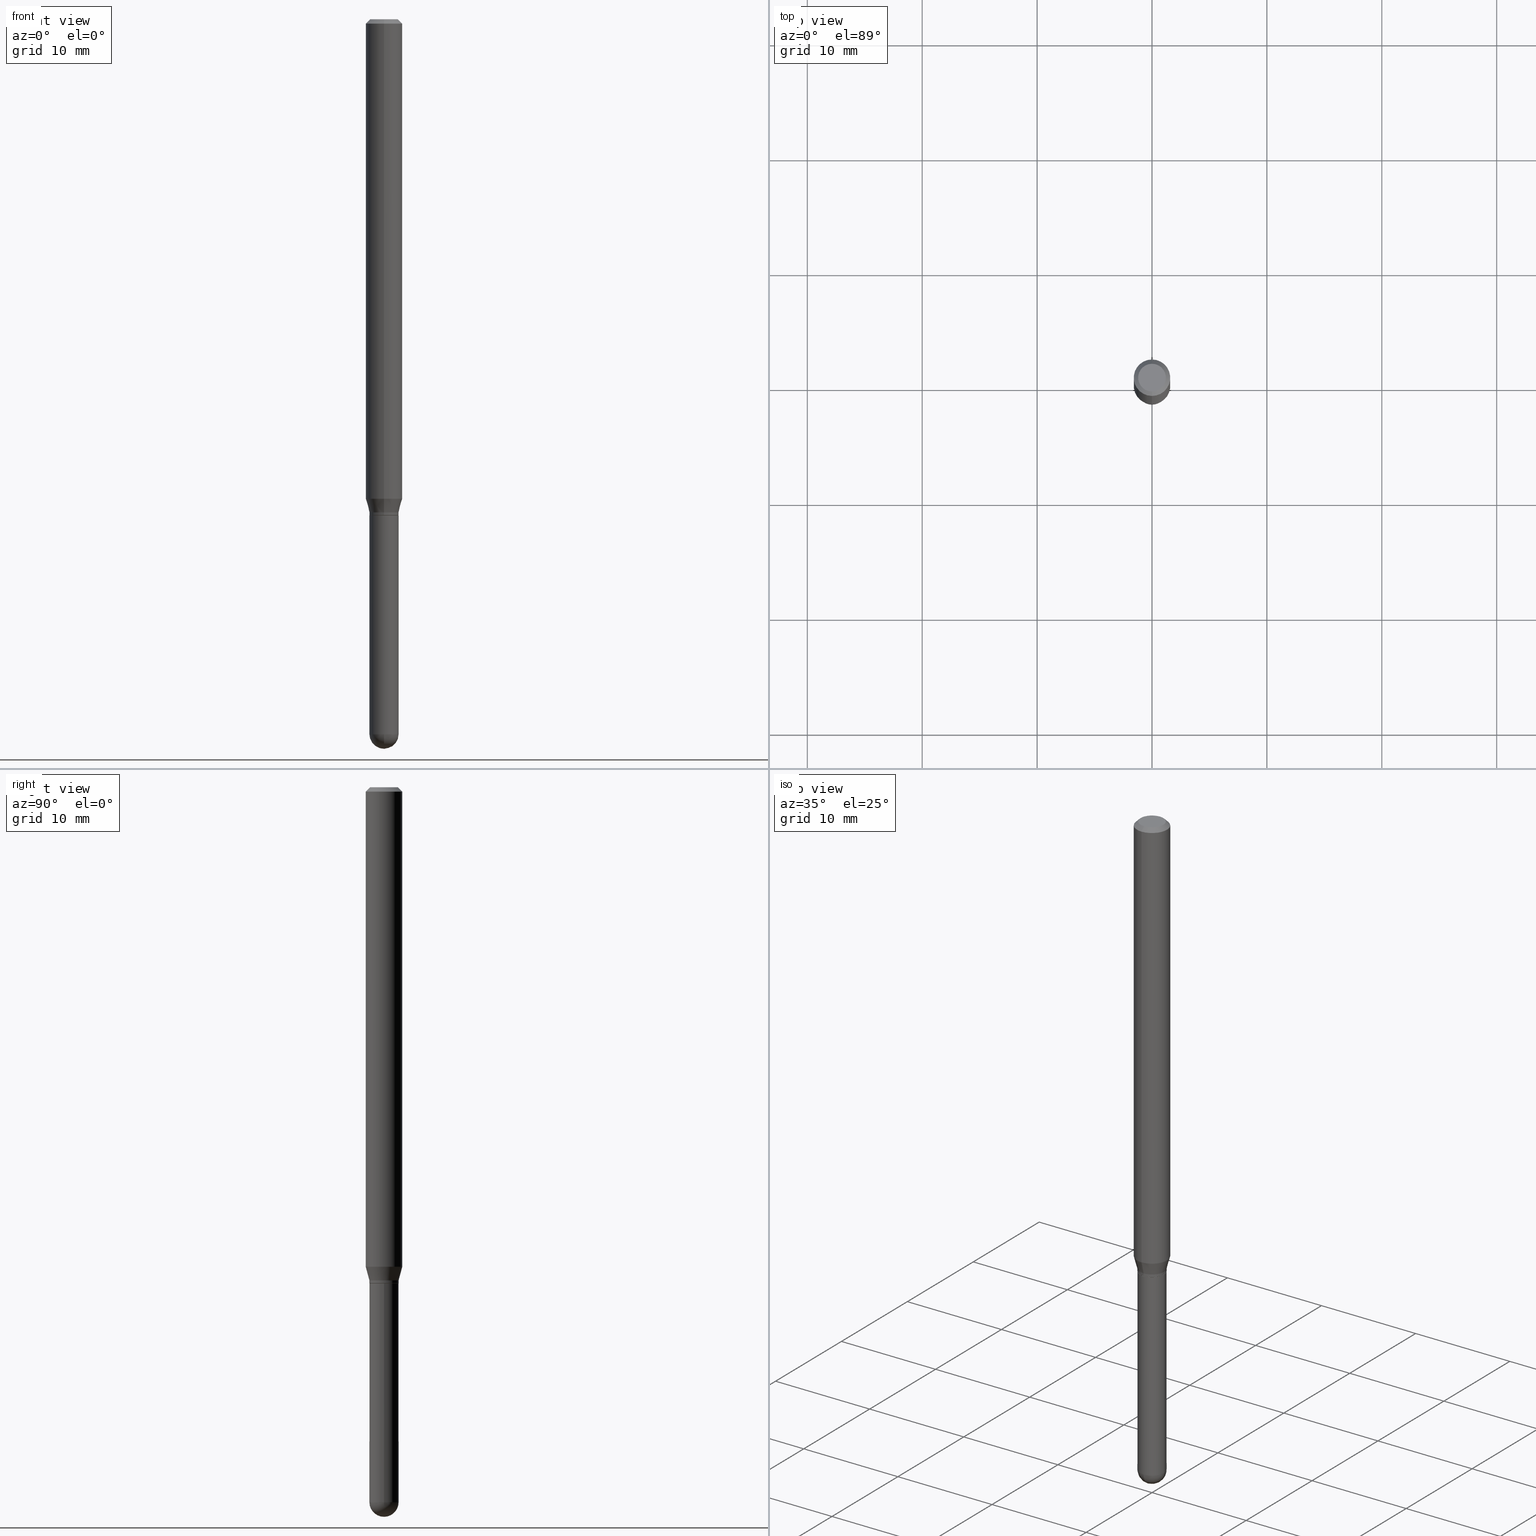
[diagram: canonical four-view strip — front | top / right | iso, engineering-drawing reading convention]
A machine part, canonical four-view strip (front | top / right | iso — engineering-drawing reading convention). The complete STEP part file that produces these views, byte-faithful:
ISO-10303-21;
HEADER;
FILE_DESCRIPTION (( 'STEP AP203' ),
    '1' );
FILE_NAME ('02770.STEP',
    '2024-03-07T21:22:55',
    ( '' ),
    ( '' ),
    'SwSTEP 2.0',
    'SolidWorks 2023',
    '' );
FILE_SCHEMA (( 'CONFIG_CONTROL_DESIGN' ));
ENDSEC;

DATA;
#1 = CARTESIAN_POINT ( 'NONE',  ( 8.025071370711656730E-45, -1.145702957227667163E-30, -3.281516264448300764E-16 ) ) ;
#2 = VERTEX_POINT ( 'NONE', #54 ) ;
#3 = VECTOR ( 'NONE', #172, 39.37007874015748143 ) ;
#4 = VECTOR ( 'NONE', #196, 39.37007874015748143 ) ;
#5 = PRODUCT_DEFINITION ( 'UNKNOWN', '', #163, #113 ) ;
#6 = UNCERTAINTY_MEASURE_WITH_UNIT (LENGTH_MEASURE( 1.000000000000000082E-05 ), #199, 'distance_accuracy_value', 'NONE');
#7 = CARTESIAN_POINT ( 'NONE',  ( 4.440892098501028481E-16, 0.06249999999999429623, -1.643349364905388077 ) ) ;
#8 = VERTEX_POINT ( 'NONE', #206 ) ;
#9 = FACE_OUTER_BOUND ( 'NONE', #446, .T. ) ;
#10 = ORIENTED_EDGE ( 'NONE', *, *, #401, .F. ) ;
#11 = CARTESIAN_POINT ( 'NONE',  ( 3.668306382169205051E-31, -5.237074258812084429E-17, -0.01500000000000032904 ) ) ;
#12 = ORIENTED_EDGE ( 'NONE', *, *, #323, .T. ) ;
#13 = EDGE_CURVE ( 'NONE', #2, #310, #242, .T. ) ;
#14 = AXIS2_PLACEMENT_3D ( 'NONE', #367, #292, #404 ) ;
#15 = CARTESIAN_POINT ( 'NONE',  ( 4.157413899791674126E-29, -5.935350826653564818E-15, -1.699999999999999956 ) ) ;
#16 = CARTESIAN_POINT ( 'NONE',  ( -4.364351673553512403E-16, -0.06250000000000570377, -1.643349364905387633 ) ) ;
#17 = VERTEX_POINT ( 'NONE', #415 ) ;
#18 = DIRECTION ( 'NONE',  ( -2.445537588112749651E-29, 3.491382839207979536E-15, 1.000000000000000000 ) ) ;
#19 = DIRECTION ( 'NONE',  ( 2.445537588112749371E-29, -3.491382839207979536E-15, -1.000000000000000000 ) ) ;
#20 = AXIS2_PLACEMENT_3D ( 'NONE', #215, #32, #142 ) ;
#21 = CARTESIAN_POINT ( 'NONE',  ( 0.000000000000000000, 0.000000000000000000, 0.000000000000000000 ) ) ;
#22 = CIRCLE ( 'NONE', #509, 0.04999999999999999584 ) ;
#23 = VERTEX_POINT ( 'NONE', #326 ) ;
#24 = DIRECTION ( 'NONE',  ( -6.982962677686265133E-15, -1.000000000000000000, 5.463695987328564302E-15 ) ) ;
#25 = ORIENTED_EDGE ( 'NONE', *, *, #375, .T. ) ;
#26 = CARTESIAN_POINT ( 'NONE',  ( 4.157296970514732439E-29, -5.935518276033348003E-15, -1.700000000000000178 ) ) ;
#27 = CC_DESIGN_DATE_AND_TIME_ASSIGNMENT ( #421, #342, ( #5 ) ) ;
#28 = DIRECTION ( 'NONE',  ( -2.445537588112749371E-29, 3.491382839207979536E-15, 1.000000000000000000 ) ) ;
#29 = AXIS2_PLACEMENT_3D ( 'NONE', #11, #111, #278 ) ;
#30 = CALENDAR_DATE ( 2024, 7, 3 ) ;
#31 = CARTESIAN_POINT ( 'NONE',  ( -4.364351673553916201E-16, -0.06250000000000000000, 2.182114274504987210E-16 ) ) ;
#32 = DIRECTION ( 'NONE',  ( 2.438088387897960049E-29, -3.491481338843145188E-15, -1.000000000000000000 ) ) ;
#33 = CARTESIAN_POINT ( 'NONE',  ( 0.000000000000000000, 0.000000000000000000, 0.000000000000000000 ) ) ;
#34 = SECURITY_CLASSIFICATION ( '', '', #68 ) ;
#35 = LINE ( 'NONE', #268, #4 ) ;
#36 = ORIENTED_EDGE ( 'NONE', *, *, #200, .F. ) ;
#37 = DIRECTION ( 'NONE',  ( -2.445468806185136597E-29, 3.491481338843145583E-15, 1.000000000000000000 ) ) ;
#38 = EDGE_LOOP ( 'NONE', ( #287, #83 ) ) ;
#39 = DIRECTION ( 'NONE',  ( 2.445537588112749651E-29, -3.491382839207979536E-15, -1.000000000000000000 ) ) ;
#40 = ORIENTED_EDGE ( 'NONE', *, *, #67, .T. ) ;
#41 = AXIS2_PLACEMENT_3D ( 'NONE', #271, #473, #358 ) ;
#42 = CARTESIAN_POINT ( 'NONE',  ( 4.440892098500625669E-16, 0.06250000000000000000, -2.182114274504987210E-16 ) ) ;
#43 = VERTEX_POINT ( 'NONE', #409 ) ;
#44 = CARTESIAN_POINT ( 'NONE',  ( 3.491481338843722536E-16, 0.04999999999999130834, -2.450000000000000178 ) ) ;
#45 = EDGE_CURVE ( 'NONE', #435, #277, #346, .T. ) ;
#46 = ORIENTED_EDGE ( 'NONE', *, *, #499, .F. ) ;
#47 =( LENGTH_UNIT ( ) NAMED_UNIT ( * ) SI_UNIT ( $, .METRE. ) );
#48 = CARTESIAN_POINT ( 'NONE',  ( 3.552713678800889641E-16, 0.04999999999999376471, -1.690000000000000169 ) ) ;
#49 = VECTOR ( 'NONE', #341, 39.37007874015748143 ) ;
#50 = LOCAL_TIME ( 16, 22, 55.00000000000000000, #377 ) ;
#51 = DIRECTION ( 'NONE',  ( -2.445468806185136597E-29, 3.491481338843145583E-15, 1.000000000000000000 ) ) ;
#52 = DIRECTION ( 'NONE',  ( 1.000000000000000000, -6.982962677686274599E-15, 0.000000000000000000 ) ) ;
#53 = EDGE_CURVE ( 'NONE', #435, #458, #368, .T. ) ;
#54 = CARTESIAN_POINT ( 'NONE',  ( 3.996802888650959061E-16, 0.04999999999999376471, -1.690000000000000169 ) ) ;
#55 = EDGE_CURVE ( 'NONE', #132, #23, #414, .T. ) ;
#56 = ORIENTED_EDGE ( 'NONE', *, *, #95, .T. ) ;
#57 = FACE_OUTER_BOUND ( 'NONE', #120, .T. ) ;
#58 = AXIS2_PLACEMENT_3D ( 'NONE', #478, #229, #227 ) ;
#59 = DIRECTION ( 'NONE',  ( -2.445537588112749651E-29, 3.491382839207979536E-15, 1.000000000000000000 ) ) ;
#60 = ADVANCED_FACE ( 'NONE', ( #363 ), #164, .F. ) ;
#61 = DIRECTION ( 'NONE',  ( -2.445537588112749651E-29, 3.491382839207979536E-15, 1.000000000000000000 ) ) ;
#62 = PERSON_AND_ORGANIZATION ( #480, #347 ) ;
#63 = CYLINDRICAL_SURFACE ( 'NONE', #41, 0.06250000000000000000 ) ;
#64 = CARTESIAN_POINT ( 'NONE',  ( 0.04999999999999999584, -3.491481338843132862E-16, 2.438088387897967896E-30 ) ) ;
#65 = CIRCLE ( 'NONE', #118, 0.04999999999999966277 ) ;
#66 = ADVANCED_FACE ( 'NONE', ( #123 ), #284, .T. ) ;
#67 = EDGE_CURVE ( 'NONE', #43, #8, #260, .T. ) ;
#68 = SECURITY_CLASSIFICATION_LEVEL ( 'unclassified' ) ;
#69 = DIRECTION ( 'NONE',  ( -6.982962677686265922E-15, -1.000000000000000000, 4.370956789862821150E-15 ) ) ;
#70 = CARTESIAN_POINT ( 'NONE',  ( 0.000000000000000000, 0.000000000000000000, 0.000000000000000000 ) ) ;
#71 = CYLINDRICAL_SURFACE ( 'NONE', #355, 0.04999999999999965583 ) ;
#72 = DIRECTION ( 'NONE',  ( -2.445537588112749651E-29, 3.491382839207979536E-15, 1.000000000000000000 ) ) ;
#73 = VECTOR ( 'NONE', #419, 39.37007874015748143 ) ;
#74 = DIRECTION ( 'NONE',  ( -6.982962677686266711E-15, -1.000000000000000000, 5.518884835685379092E-15 ) ) ;
#75 = ORIENTED_EDGE ( 'NONE', *, *, #420, .F. ) ;
#76 = CARTESIAN_POINT ( 'NONE',  ( 4.018872642277341407E-29, -5.737561771454002160E-15, -1.643349364905387855 ) ) ;
#77 = ORIENTED_EDGE ( 'NONE', *, *, #281, .F. ) ;
#78 = DIRECTION ( 'NONE',  ( -6.982962677686266711E-15, -1.000000000000000000, 3.491382839207979931E-15 ) ) ;
#79 = ORIENTED_EDGE ( 'NONE', *, *, #484, .T. ) ;
#80 = CIRCLE ( 'NONE', #398, 0.06250000000000000000 ) ;
#81 = EDGE_CURVE ( 'NONE', #307, #197, #450, .T. ) ;
#82 = DIRECTION ( 'NONE',  ( -6.982962677686265133E-15, -1.000000000000000000, 5.463695987328564302E-15 ) ) ;
#83 = ORIENTED_EDGE ( 'NONE', *, *, #45, .F. ) ;
#84 = DIRECTION ( 'NONE',  ( -1.000000000000000000, 6.982962677686265922E-15, -4.883557194083112340E-29 ) ) ;
#85 = ORIENTED_EDGE ( 'NONE', *, *, #200, .T. ) ;
#86 = EDGE_LOOP ( 'NONE', ( #46, #170, #512, #452 ) ) ;
#87 = VECTOR ( 'NONE', #250, 39.37007874015748854 ) ;
#88 = AXIS2_PLACEMENT_3D ( 'NONE', #244, #407, #241 ) ;
#89 = FACE_OUTER_BOUND ( 'NONE', #412, .T. ) ;
#90 = CARTESIAN_POINT ( 'NONE',  ( 4.157296970514732439E-29, -5.935518276033348003E-15, -1.700000000000000178 ) ) ;
#91 =( NAMED_UNIT ( * ) PLANE_ANGLE_UNIT ( ) SI_UNIT ( $, .RADIAN. ) );
#92 = ORIENTED_EDGE ( 'NONE', *, *, #55, .T. ) ;
#93 = DIRECTION ( 'NONE',  ( -6.982962677686265922E-15, -1.000000000000000000, 3.491382839207979536E-15 ) ) ;
#94 = ORIENTED_EDGE ( 'NONE', *, *, #444, .F. ) ;
#95 = EDGE_CURVE ( 'NONE', #498, #43, #500, .T. ) ;
#96 = CARTESIAN_POINT ( 'NONE',  ( 4.157413899791674126E-29, -5.935350826653564818E-15, -1.699999999999999956 ) ) ;
#97 = DIRECTION ( 'NONE',  ( -6.982962677686265922E-15, -1.000000000000000000, 3.491382839207979536E-15 ) ) ;
#98 = DATE_AND_TIME ( #141, #272 ) ;
#99 = DIRECTION ( 'NONE',  ( -2.445537588112749651E-29, 3.491382839207979536E-15, 1.000000000000000000 ) ) ;
#100 = PERSON_AND_ORGANIZATION_ROLE ( 'creator' ) ;
#101 = CIRCLE ( 'NONE', #297, 0.04999999999999973910 ) ;
#102 = CARTESIAN_POINT ( 'NONE',  ( 3.840629472727447874E-16, 0.04749999999999999362, -4.939923113072091241E-16 ) ) ;
#103 = EDGE_CURVE ( 'NONE', #372, #109, #422, .T. ) ;
#104 = PRODUCT ( '02770', '02770', '', ( #258 ) ) ;
#105 = APPROVAL_ROLE ( '' ) ;
#106 = DIRECTION ( 'NONE',  ( 4.937700262164548042E-15, 0.7071067811865451302, -0.7071067811865499042 ) ) ;
#107 = CARTESIAN_POINT ( 'NONE',  ( -3.491481338842686663E-16, -0.05000000000000548450, -1.699500000000000011 ) ) ;
#108 = DIRECTION ( 'NONE',  ( -1.000000000000000000, 6.982962677686265922E-15, -4.883557194083112340E-29 ) ) ;
#109 = VERTEX_POINT ( 'NONE', #218 ) ;
#110 = CC_DESIGN_APPROVAL ( #276, ( #34 ) ) ;
#111 = DIRECTION ( 'NONE',  ( 2.445537588112749651E-29, -3.491382839207979536E-15, -1.000000000000000000 ) ) ;
#112 = ORIENTED_EDGE ( 'NONE', *, *, #364, .T. ) ;
#113 = DESIGN_CONTEXT ( 'detailed design', #128, 'design' ) ;
#114 = CARTESIAN_POINT ( 'NONE',  ( 4.156191130997619020E-29, -5.933605135233962617E-15, -1.699500000000000233 ) ) ;
#115 = ORIENTED_EDGE ( 'NONE', *, *, #185, .F. ) ;
#116 = LINE ( 'NONE', #42, #416 ) ;
#117 = ORIENTED_EDGE ( 'NONE', *, *, #405, .T. ) ;
#118 = AXIS2_PLACEMENT_3D ( 'NONE', #485, #482, #370 ) ;
#119 = DIRECTION ( 'NONE',  ( -1.000000000000000000, 7.105427357601001070E-15, -4.926315508542082329E-29 ) ) ;
#120 = EDGE_LOOP ( 'NONE', ( #322, #451, #10, #153 ) ) ;
#121 = ADVANCED_FACE ( 'NONE', ( #148 ), #505, .F. ) ;
#122 =( NAMED_UNIT ( * ) SI_UNIT ( $, .STERADIAN. ) SOLID_ANGLE_UNIT ( ) );
#123 = FACE_OUTER_BOUND ( 'NONE', #86, .T. ) ;
#124 = CC_DESIGN_PERSON_AND_ORGANIZATION_ASSIGNMENT ( #504, #216, ( #104 ) ) ;
#125 = DIRECTION ( 'NONE',  ( -2.445468806185136597E-29, 3.491481338843145583E-15, 1.000000000000000000 ) ) ;
#126 = ORIENTED_EDGE ( 'NONE', *, *, #305, .T. ) ;
#127 = CONICAL_SURFACE ( 'NONE', #29, 0.06250000000000000000, 0.7853981633974483900 ) ;
#128 = APPLICATION_CONTEXT ( 'configuration controlled 3d designs of mechanical parts and assemblies' ) ;
#129 = DIRECTION ( 'NONE',  ( -7.105427357601001070E-15, -1.000000000000000000, 0.000000000000000000 ) ) ;
#130 = ORIENTED_EDGE ( 'NONE', *, *, #13, .T. ) ;
#131 = DIRECTION ( 'NONE',  ( -2.445537588112749651E-29, 3.491382839207979536E-15, 1.000000000000000000 ) ) ;
#132 = VERTEX_POINT ( 'NONE', #463 ) ;
#133 = APPLICATION_PROTOCOL_DEFINITION ( 'international standard', 'config_control_design', 1994, #128 ) ;
#134 = ORIENTED_EDGE ( 'NONE', *, *, #195, .T. ) ;
#135 = PERSON_AND_ORGANIZATION_ROLE ( 'creator' ) ;
#136 = CONICAL_SURFACE ( 'NONE', #471, 0.06250000000000000000, 0.7853981633974483900 ) ;
#137 = CC_DESIGN_APPROVAL ( #343, ( #163 ) ) ;
#138 = DIRECTION ( 'NONE',  ( -6.982962677686266711E-15, -1.000000000000000000, 3.491382839207979931E-15 ) ) ;
#139 = PERSON_AND_ORGANIZATION ( #480, #347 ) ;
#140 = LINE ( 'NONE', #417, #384 ) ;
#141 = CALENDAR_DATE ( 2024, 7, 3 ) ;
#142 = DIRECTION ( 'NONE',  ( -1.000000000000000000, 6.982962677686265922E-15, -4.876176775795935793E-29 ) ) ;
#143 = PERSON_AND_ORGANIZATION ( #480, #347 ) ;
#144 = AXIS2_PLACEMENT_3D ( 'NONE', #26, #298, #173 ) ;
#145 = AXIS2_PLACEMENT_3D ( 'NONE', #402, #189, #352 ) ;
#146 = DIRECTION ( 'NONE',  ( 1.000000000000000000, -6.982962677686255667E-15, 0.000000000000000000 ) ) ;
#147 = APPROVAL_PERSON_ORGANIZATION ( #428, #276, #222 ) ;
#148 = FACE_OUTER_BOUND ( 'NONE', #156, .T. ) ;
#149 = DIRECTION ( 'NONE',  ( -2.445537588112749651E-29, 3.491382839207979536E-15, 1.000000000000000000 ) ) ;
#150 = ORIENTED_EDGE ( 'NONE', *, *, #53, .F. ) ;
#151 = FACE_OUTER_BOUND ( 'NONE', #350, .T. ) ;
#152 = AXIS2_PLACEMENT_3D ( 'NONE', #300, #223, #69 ) ;
#153 = ORIENTED_EDGE ( 'NONE', *, *, #81, .F. ) ;
#154 = AXIS2_PLACEMENT_3D ( 'NONE', #157, #356, #475 ) ;
#155 = DIRECTION ( 'NONE',  ( 1.000000000000000000, -6.982962677686265922E-15, 4.876176775795936353E-29 ) ) ;
#156 = EDGE_LOOP ( 'NONE', ( #92, #167 ) ) ;
#157 = CARTESIAN_POINT ( 'NONE',  ( 3.668306382169205051E-31, -5.237074258812084429E-17, -0.01500000000000032904 ) ) ;
#158 = MANIFOLD_SOLID_BREP ( 'Body-Move/Copy2[1]', #489 ) ;
#159 = ORIENTED_EDGE ( 'NONE', *, *, #246, .F. ) ;
#160 = DIRECTION ( 'NONE',  ( 6.982962677686265922E-15, 1.000000000000000000, -5.463695987328554836E-15 ) ) ;
#161 = VERTEX_POINT ( 'NONE', #102 ) ;
#162 = AXIS2_PLACEMENT_3D ( 'NONE', #445, #84, #239 ) ;
#163 = PRODUCT_DEFINITION_FORMATION_WITH_SPECIFIED_SOURCE ( 'ANY', '', #104, .NOT_KNOWN. ) ;
#164 = PLANE ( 'NONE',  #225 ) ;
#165 = SPHERICAL_SURFACE ( 'NONE', #162, 0.04999999999999973910 ) ;
#166 = DIRECTION ( 'NONE',  ( -6.982962677686266711E-15, -1.000000000000000000, 5.518884835685379092E-15 ) ) ;
#167 = ORIENTED_EDGE ( 'NONE', *, *, #221, .T. ) ;
#168 = AXIS2_PLACEMENT_3D ( 'NONE', #391, #467, #146 ) ;
#169 = CARTESIAN_POINT ( 'NONE',  ( 5.987122743707687383E-29, -8.560252514161443770E-15, -2.450000000000000178 ) ) ;
#170 = ORIENTED_EDGE ( 'NONE', *, *, #420, .T. ) ;
#171 = DATE_AND_TIME ( #390, #228 ) ;
#172 = DIRECTION ( 'NONE',  ( 5.024295867788147587E-15, 0.7071067811865620056, 0.7071067811865330288 ) ) ;
#173 = DIRECTION ( 'NONE',  ( 1.000000000000000000, -6.982962677686274599E-15, 0.000000000000000000 ) ) ;
#174 = PERSON_AND_ORGANIZATION ( #480, #347 ) ;
#175 = CIRCLE ( 'NONE', #335, 0.04999999999999999584 ) ;
#176 = APPROVAL_PERSON_ORGANIZATION ( #174, #267, #105 ) ;
#177 = FACE_OUTER_BOUND ( 'NONE', #207, .T. ) ;
#178 = DATE_AND_TIME ( #385, #481 ) ;
#179 = LINE ( 'NONE', #380, #182 ) ;
#180 = CC_DESIGN_PERSON_AND_ORGANIZATION_ASSIGNMENT ( #139, #219, ( #34 ) ) ;
#181 = DIRECTION ( 'NONE',  ( -2.445468806185136877E-29, 3.491481338843145188E-15, 1.000000000000000000 ) ) ;
#182 = VECTOR ( 'NONE', #106, 39.37007874015748143 ) ;
#183 = CIRCLE ( 'NONE', #362, 0.04999999999999966277 ) ;
#184 = CARTESIAN_POINT ( 'NONE',  ( 4.157413899791674126E-29, -5.935350826653564818E-15, -1.699999999999999956 ) ) ;
#185 = EDGE_CURVE ( 'NONE', #161, #8, #179, .T. ) ;
#186 = ADVANCED_FACE ( 'NONE', ( #263 ), #304, .F. ) ;
#187 = CARTESIAN_POINT ( 'NONE',  ( 4.132958523910547331E-29, -5.900436998261486087E-15, -1.689999999999999947 ) ) ;
#188 = EDGE_LOOP ( 'NONE', ( #134, #25, #317, #433 ) ) ;
#189 = DIRECTION ( 'NONE',  ( -2.445537588112749651E-29, 3.491382839207979536E-15, 1.000000000000000000 ) ) ;
#190 = ORIENTED_EDGE ( 'NONE', *, *, #55, .F. ) ;
#191 = DIRECTION ( 'NONE',  ( -6.982962677686265133E-15, -1.000000000000000000, 5.463695987328563513E-15 ) ) ;
#192 = ORIENTED_EDGE ( 'NONE', *, *, #221, .F. ) ;
#193 = AXIS2_PLACEMENT_3D ( 'NONE', #442, #392, #74 ) ;
#194 =( GEOMETRIC_REPRESENTATION_CONTEXT ( 3 ) GLOBAL_UNCERTAINTY_ASSIGNED_CONTEXT ( ( #6 ) ) GLOBAL_UNIT_ASSIGNED_CONTEXT ( ( #199, #91, #122 ) ) REPRESENTATION_CONTEXT ( 'NONE', 'WORKASPACE' ) );
#195 = EDGE_CURVE ( 'NONE', #498, #310, #382, .T. ) ;
#196 = DIRECTION ( 'NONE',  ( -1.807323732225327773E-15, -0.2588190451025178529, 0.9659258262890690894 ) ) ;
#197 = VERTEX_POINT ( 'NONE', #220 ) ;
#198 = CARTESIAN_POINT ( 'NONE',  ( -3.456566525454287160E-16, -0.04950000000000594202, -1.699999999999999734 ) ) ;
#199 =( CONVERSION_BASED_UNIT ( 'INCH', #324 ) LENGTH_UNIT ( ) NAMED_UNIT ( #345 ) );
#200 = EDGE_CURVE ( 'NONE', #197, #132, #344, .T. ) ;
#201 = DIRECTION ( 'NONE',  ( -2.445468806185136597E-29, 3.491481338843145583E-15, 1.000000000000000000 ) ) ;
#202 = CIRCLE ( 'NONE', #154, 0.06250000000000000000 ) ;
#203 = CC_DESIGN_SECURITY_CLASSIFICATION ( #34, ( #163 ) ) ;
#204 = CARTESIAN_POINT ( 'NONE',  ( 5.991398575153583765E-29, -8.554129280165706697E-15, -2.449999999999999734 ) ) ;
#205 = ORIENTED_EDGE ( 'NONE', *, *, #405, .F. ) ;
#206 = CARTESIAN_POINT ( 'NONE',  ( 4.440892098501030453E-16, 0.06249999999999995143, -0.01500000000000054588 ) ) ;
#207 = EDGE_LOOP ( 'NONE', ( #477, #483, #443, #448 ) ) ;
#208 = AXIS2_PLACEMENT_3D ( 'NONE', #96, #503, #507 ) ;
#209 = CIRCLE ( 'NONE', #58, 0.04999999999999999584 ) ;
#210 = CYLINDRICAL_SURFACE ( 'NONE', #253, 0.04999999999999999584 ) ;
#211 = CARTESIAN_POINT ( 'NONE',  ( 3.517186542012911717E-16, 0.04949999999999407652, -1.700000000000000178 ) ) ;
#212 = DATE_TIME_ROLE ( 'classification_date' ) ;
#213 = DIRECTION ( 'NONE',  ( -6.982962677686265133E-15, -1.000000000000000000, 3.491382839207979536E-15 ) ) ;
#214 = COORDINATED_UNIVERSAL_TIME_OFFSET ( 5, 0, .BEHIND. ) ;
#215 = CARTESIAN_POINT ( 'NONE',  ( 3.491481338843548493E-16, 0.04999999999999407002, -1.700000000000000400 ) ) ;
#216 = PERSON_AND_ORGANIZATION_ROLE ( 'design_owner' ) ;
#217 = CONICAL_SURFACE ( 'NONE', #88, 0.04950000000000000927, 0.7853981633974653764 ) ;
#218 = CARTESIAN_POINT ( 'NONE',  ( -3.491481338842696524E-16, -0.05000000000000556083, -1.689999999999999725 ) ) ;
#219 = PERSON_AND_ORGANIZATION_ROLE ( 'classification_officer' ) ;
#220 = CARTESIAN_POINT ( 'NONE',  ( 0.04999999999999999584, -7.593971911983840291E-15, -2.449999999999999734 ) ) ;
#221 = EDGE_CURVE ( 'NONE', #23, #132, #371, .T. ) ;
#222 = APPROVAL_ROLE ( '' ) ;
#223 = DIRECTION ( 'NONE',  ( -2.445537588112749651E-29, 3.491382839207979536E-15, 1.000000000000000000 ) ) ;
#224 = EDGE_CURVE ( 'NONE', #277, #435, #439, .T. ) ;
#225 = AXIS2_PLACEMENT_3D ( 'NONE', #366, #19, #320 ) ;
#226 = AXIS2_PLACEMENT_3D ( 'NONE', #114, #232, #82 ) ;
#227 = DIRECTION ( 'NONE',  ( 1.000000000000000000, -6.982962677686255667E-15, 0.000000000000000000 ) ) ;
#228 = LOCAL_TIME ( 16, 22, 55.00000000000000000, #214 ) ;
#229 = DIRECTION ( 'NONE',  ( -2.445468806185136597E-29, 3.491481338843145583E-15, 1.000000000000000000 ) ) ;
#230 = ORIENTED_EDGE ( 'NONE', *, *, #13, .F. ) ;
#231 = EDGE_CURVE ( 'NONE', #161, #240, #296, .T. ) ;
#232 = DIRECTION ( 'NONE',  ( -2.445537588112749651E-29, 3.491382839207979536E-15, 1.000000000000000000 ) ) ;
#233 = ORIENTED_EDGE ( 'NONE', *, *, #381, .F. ) ;
#234 = DIRECTION ( 'NONE',  ( -4.937700262164631661E-15, -0.7071067811865571207, 0.7071067811865379138 ) ) ;
#235 = AXIS2_PLACEMENT_3D ( 'NONE', #490, #449, #24 ) ;
#236 = ORIENTED_EDGE ( 'NONE', *, *, #338, .F. ) ;
#237 = SPHERICAL_SURFACE ( 'NONE', #408, 0.04999999999999973910 ) ;
#238 = ORIENTED_EDGE ( 'NONE', *, *, #281, .T. ) ;
#239 = DIRECTION ( 'NONE',  ( 6.982962677686265922E-15, 1.000000000000000000, -5.463695987328554836E-15 ) ) ;
#240 = VERTEX_POINT ( 'NONE', #254 ) ;
#241 = DIRECTION ( 'NONE',  ( -6.982962677686266711E-15, -1.000000000000000000, 5.518884835685379092E-15 ) ) ;
#242 = LINE ( 'NONE', #48, #87 ) ;
#243 = CIRCLE ( 'NONE', #288, 0.04749999999999999362 ) ;
#244 = CARTESIAN_POINT ( 'NONE',  ( 4.157413899791674126E-29, -5.935350826653564818E-15, -1.699999999999999956 ) ) ;
#245 = ORIENTED_EDGE ( 'NONE', *, *, #305, .F. ) ;
#246 = EDGE_CURVE ( 'NONE', #353, #313, #101, .T. ) ;
#247 = EDGE_LOOP ( 'NONE', ( #150, #361, #456, #75 ) ) ;
#248 = CC_DESIGN_PERSON_AND_ORGANIZATION_ASSIGNMENT ( #62, #135, ( #163 ) ) ;
#249 = FACE_OUTER_BOUND ( 'NONE', #394, .T. ) ;
#250 = DIRECTION ( 'NONE',  ( 1.839019923739597554E-15, 0.2588190451025245697, 0.9659258262890670910 ) ) ;
#251 = AXIS2_PLACEMENT_3D ( 'NONE', #90, #201, #52 ) ;
#252 = PRODUCT_RELATED_PRODUCT_CATEGORY ( 'detail', '', ( #104 ) ) ;
#253 = AXIS2_PLACEMENT_3D ( 'NONE', #374, #125, #411 ) ;
#254 = CARTESIAN_POINT ( 'NONE',  ( -3.773273898774340269E-16, -0.04749999999999999362, -1.623109415824510533E-16 ) ) ;
#255 = APPROVAL_STATUS ( 'not_yet_approved' ) ;
#256 = EDGE_CURVE ( 'NONE', #240, #43, #140, .T. ) ;
#257 = DIRECTION ( 'NONE',  ( -4.851104656540964275E-15, -0.7071067811865500152, -0.7071067811865450192 ) ) ;
#258 = MECHANICAL_CONTEXT ( 'NONE', #351, 'mechanical' ) ;
#259 = FACE_OUTER_BOUND ( 'NONE', #188, .T. ) ;
#260 = CIRCLE ( 'NONE', #354, 0.06250000000000000000 ) ;
#261 = CONICAL_SURFACE ( 'NONE', #193, 0.04950000000000000927, 0.7853981633974653764 ) ;
#262 = DIRECTION ( 'NONE',  ( 1.000000000000000000, 0.000000000000000000, 0.000000000000000000 ) ) ;
#263 = FACE_OUTER_BOUND ( 'NONE', #38, .T. ) ;
#264 = ADVANCED_FACE ( 'NONE', ( #177 ), #71, .T. ) ;
#265 = APPROVAL_DATE_TIME ( #178, #343 ) ;
#266 = CARTESIAN_POINT ( 'NONE',  ( 5.987122743707687383E-29, -8.560252514161443770E-15, -2.450000000000000178 ) ) ;
#267 = APPROVAL ( #255, 'UNSPECIFIED' ) ;
#268 = CARTESIAN_POINT ( 'NONE',  ( -3.491481338842696524E-16, -0.05000000000000556083, -1.689999999999999725 ) ) ;
#269 = AXIS2_PLACEMENT_3D ( 'NONE', #15, #59, #166 ) ;
#270 = CIRCLE ( 'NONE', #373, 0.04999999999999973910 ) ;
#271 = CARTESIAN_POINT ( 'NONE',  ( 0.000000000000000000, 0.000000000000000000, 0.000000000000000000 ) ) ;
#272 = LOCAL_TIME ( 16, 22, 55.00000000000000000, #339 ) ;
#273 = ORIENTED_EDGE ( 'NONE', *, *, #256, .F. ) ;
#274 = DIRECTION ( 'NONE',  ( -2.445537588112749651E-29, 3.491382839207979536E-15, 1.000000000000000000 ) ) ;
#275 = ORIENTED_EDGE ( 'NONE', *, *, #454, .T. ) ;
#276 = APPROVAL ( #332, 'UNSPECIFIED' ) ;
#277 = VERTEX_POINT ( 'NONE', #378 ) ;
#278 = DIRECTION ( 'NONE',  ( 6.982962677686265922E-15, 1.000000000000000000, -3.483106191921935554E-15 ) ) ;
#279 = AXIS2_PLACEMENT_3D ( 'NONE', #21, #18, #93 ) ;
#280 = ORIENTED_EDGE ( 'NONE', *, *, #195, .F. ) ;
#281 = EDGE_CURVE ( 'NONE', #17, #23, #299, .T. ) ;
#282 = CARTESIAN_POINT ( 'NONE',  ( 3.552713678800475982E-16, 0.04999999999999965583, -1.745691419603977689E-16 ) ) ;
#283 = EDGE_LOOP ( 'NONE', ( #275, #238, #190, #36, #357 ) ) ;
#284 = CYLINDRICAL_SURFACE ( 'NONE', #424, 0.04999999999999965583 ) ;
#285 = APPLICATION_PROTOCOL_DEFINITION ( 'international standard', 'config_control_design', 1994, #351 ) ;
#286 = ADVANCED_FACE ( 'NONE', ( #259 ), #63, .T. ) ;
#287 = ORIENTED_EDGE ( 'NONE', *, *, #224, .F. ) ;
#288 = AXIS2_PLACEMENT_3D ( 'NONE', #1, #72, #78 ) ;
#289 = DIRECTION ( 'NONE',  ( 6.982962677686265922E-15, 1.000000000000000000, -3.483106191921935554E-15 ) ) ;
#290 = ADVANCED_FACE ( 'NONE', ( #9 ), #237, .T. ) ;
#291 = CARTESIAN_POINT ( 'NONE',  ( 0.000000000000000000, 0.000000000000000000, 0.000000000000000000 ) ) ;
#292 = DIRECTION ( 'NONE',  ( -2.445537588112749651E-29, 3.491382839207979536E-15, 1.000000000000000000 ) ) ;
#293 = ORIENTED_EDGE ( 'NONE', *, *, #53, .T. ) ;
#294 = CALENDAR_DATE ( 2024, 7, 3 ) ;
#295 = EDGE_LOOP ( 'NONE', ( #230, #79, #497, #376 ) ) ;
#296 = CIRCLE ( 'NONE', #425, 0.04749999999999999362 ) ;
#297 = AXIS2_PLACEMENT_3D ( 'NONE', #266, #460, #429 ) ;
#298 = DIRECTION ( 'NONE',  ( -2.445468806185136597E-29, 3.491481338843145583E-15, 1.000000000000000000 ) ) ;
#299 = LINE ( 'NONE', #462, #73 ) ;
#300 = CARTESIAN_POINT ( 'NONE',  ( 4.018872642277341407E-29, -5.737561771454002160E-15, -1.643349364905387855 ) ) ;
#301 = VECTOR ( 'NONE', #181, 39.37007874015748143 ) ;
#302 = APPROVAL_ROLE ( '' ) ;
#303 = CARTESIAN_POINT ( 'NONE',  ( 8.025071370711656730E-45, -1.145702957227667163E-30, -3.281516264448300764E-16 ) ) ;
#304 = PLANE ( 'NONE',  #334 ) ;
#305 = EDGE_CURVE ( 'NONE', #240, #161, #243, .T. ) ;
#306 = FACE_OUTER_BOUND ( 'NONE', #247, .T. ) ;
#307 = VERTEX_POINT ( 'NONE', #312 ) ;
#308 = CARTESIAN_POINT ( 'NONE',  ( 3.668306382169205051E-31, -5.237074258812084429E-17, -0.01500000000000032904 ) ) ;
#309 = DIRECTION ( 'NONE',  ( -2.445537588112749651E-29, 3.491382839207979536E-15, 1.000000000000000000 ) ) ;
#310 = VERTEX_POINT ( 'NONE', #7 ) ;
#311 = ADVANCED_BREP_SHAPE_REPRESENTATION ( '02770', ( #158, #314, #318 ), #194 ) ;
#312 = CARTESIAN_POINT ( 'NONE',  ( -3.552713678799891732E-16, -0.05000000000000843353, -2.449999999999999734 ) ) ;
#313 = VERTEX_POINT ( 'NONE', #44 ) ;
#314 = MANIFOLD_SOLID_BREP ( 'Body-Move/Copy2[2]', #325 ) ;
#315 = CARTESIAN_POINT ( 'NONE',  ( 3.552713678800898515E-16, 0.04999999999999382716, -1.699500000000000455 ) ) ;
#316 = CIRCLE ( 'NONE', #235, 0.04999999999999965583 ) ;
#317 = ORIENTED_EDGE ( 'NONE', *, *, #67, .F. ) ;
#318 = AXIS2_PLACEMENT_3D ( 'NONE', #70, #502, #262 ) ;
#319 = LINE ( 'NONE', #282, #440 ) ;
#320 = DIRECTION ( 'NONE',  ( 6.982962677686265922E-15, 1.000000000000000000, -3.491382839207979536E-15 ) ) ;
#321 = ADVANCED_FACE ( 'NONE', ( #349 ), #127, .T. ) ;
#322 = ORIENTED_EDGE ( 'NONE', *, *, #488, .F. ) ;
#323 = EDGE_CURVE ( 'NONE', #109, #2, #183, .T. ) ;
#324 = LENGTH_MEASURE_WITH_UNIT ( LENGTH_MEASURE( 0.02539999999999999897 ), #47 );
#325 = CLOSED_SHELL ( 'NONE', ( #264, #447, #430, #286, #423, #453, #492, #321, #60, #186, #383, #66 ) ) ;
#326 = CARTESIAN_POINT ( 'NONE',  ( -0.05000000000000000278, -6.889552410219476547E-15, -1.700000000000000178 ) ) ;
#327 = VECTOR ( 'NONE', #234, 39.37007874015748143 ) ;
#328 = CARTESIAN_POINT ( 'NONE',  ( 3.534950110406901418E-16, 0.04949999999999407652, -1.700000000000000178 ) ) ;
#329 = EDGE_LOOP ( 'NONE', ( #400, #126 ) ) ;
#330 = SHAPE_DEFINITION_REPRESENTATION ( #386, #311 ) ;
#331 = ORIENTED_EDGE ( 'NONE', *, *, #454, .F. ) ;
#332 = APPROVAL_STATUS ( 'not_yet_approved' ) ;
#333 = DIRECTION ( 'NONE',  ( -6.982962677686265922E-15, -1.000000000000000000, 3.483106191921935554E-15 ) ) ;
#334 = AXIS2_PLACEMENT_3D ( 'NONE', #184, #28, #97 ) ;
#335 = AXIS2_PLACEMENT_3D ( 'NONE', #395, #37, #431 ) ;
#336 = PERSON_AND_ORGANIZATION_ROLE ( 'design_supplier' ) ;
#337 = CARTESIAN_POINT ( 'NONE',  ( 3.668306382169205051E-31, -5.237074258812084429E-17, -0.01500000000000032904 ) ) ;
#338 = EDGE_CURVE ( 'NONE', #277, #372, #434, .T. ) ;
#339 = COORDINATED_UNIVERSAL_TIME_OFFSET ( 5, 0, .BEHIND. ) ;
#340 = ADVANCED_FACE ( 'NONE', ( #469 ), #468, .T. ) ;
#341 = DIRECTION ( 'NONE',  ( -2.445537588112749651E-29, 3.491382839207979536E-15, 1.000000000000000000 ) ) ;
#342 = DATE_TIME_ROLE ( 'creation_date' ) ;
#343 = APPROVAL ( #506, 'UNSPECIFIED' ) ;
#344 = LINE ( 'NONE', #64, #301 ) ;
#345 = DIMENSIONAL_EXPONENTS ( 1.000000000000000000, 0.000000000000000000, 0.000000000000000000, 0.000000000000000000, 0.000000000000000000, 0.000000000000000000, 0.000000000000000000 ) ;
#346 = CIRCLE ( 'NONE', #269, 0.04950000000000000927 ) ;
#347 = ORGANIZATION ( 'UNSPECIFIED', 'UNSPECIFIED', '' ) ;
#348 = CARTESIAN_POINT ( 'NONE',  ( -3.491481338843108703E-16, -0.04999999999999965583, 1.745691419603977689E-16 ) ) ;
#349 = FACE_OUTER_BOUND ( 'NONE', #474, .T. ) ;
#350 = EDGE_LOOP ( 'NONE', ( #245, #487, #40, #115 ) ) ;
#351 = APPLICATION_CONTEXT ( 'configuration controlled 3d designs of mechanical parts and assemblies' ) ;
#352 = DIRECTION ( 'NONE',  ( -6.982962677686265133E-15, -1.000000000000000000, 5.463695987328563513E-15 ) ) ;
#353 = VERTEX_POINT ( 'NONE', #432 ) ;
#354 = AXIS2_PLACEMENT_3D ( 'NONE', #337, #387, #333 ) ;
#355 = AXIS2_PLACEMENT_3D ( 'NONE', #33, #61, #213 ) ;
#356 = DIRECTION ( 'NONE',  ( -2.445537588112749651E-29, 3.491382839207979536E-15, 1.000000000000000000 ) ) ;
#357 = ORIENTED_EDGE ( 'NONE', *, *, #401, .T. ) ;
#358 = DIRECTION ( 'NONE',  ( -6.982962677686265922E-15, -1.000000000000000000, 3.491382839207979536E-15 ) ) ;
#359 = ORIENTED_EDGE ( 'NONE', *, *, #375, .F. ) ;
#360 = DIRECTION ( 'NONE',  ( -2.445468806185136597E-29, 3.491481338843145583E-15, 1.000000000000000000 ) ) ;
#361 = ORIENTED_EDGE ( 'NONE', *, *, #45, .T. ) ;
#362 = AXIS2_PLACEMENT_3D ( 'NONE', #187, #274, #191 ) ;
#363 = FACE_OUTER_BOUND ( 'NONE', #329, .T. ) ;
#364 = EDGE_CURVE ( 'NONE', #310, #498, #80, .T. ) ;
#365 = FACE_OUTER_BOUND ( 'NONE', #403, .T. ) ;
#366 = CARTESIAN_POINT ( 'NONE',  ( 3.316907271900976096E-16, 0.04749999999999999362, -3.299164980847940612E-16 ) ) ;
#367 = CARTESIAN_POINT ( 'NONE',  ( 4.132958523910547331E-29, -5.900436998261486087E-15, -1.689999999999999947 ) ) ;
#368 = LINE ( 'NONE', #211, #3 ) ;
#369 = CC_DESIGN_DATE_AND_TIME_ASSIGNMENT ( #98, #212, ( #34 ) ) ;
#370 = DIRECTION ( 'NONE',  ( -6.982962677686265133E-15, -1.000000000000000000, 5.463695987328563513E-15 ) ) ;
#371 = CIRCLE ( 'NONE', #144, 0.05000000000000000278 ) ;
#372 = VERTEX_POINT ( 'NONE', #107 ) ;
#373 = AXIS2_PLACEMENT_3D ( 'NONE', #169, #119, #129 ) ;
#374 = CARTESIAN_POINT ( 'NONE',  ( 0.000000000000000000, 0.000000000000000000, 0.000000000000000000 ) ) ;
#375 = EDGE_CURVE ( 'NONE', #310, #8, #116, .T. ) ;
#376 = ORIENTED_EDGE ( 'NONE', *, *, #364, .F. ) ;
#377 = COORDINATED_UNIVERSAL_TIME_OFFSET ( 5, 0, .BEHIND. ) ;
#378 = CARTESIAN_POINT ( 'NONE',  ( -3.456566525454287160E-16, -0.04950000000000594202, -1.699999999999999734 ) ) ;
#379 = DATE_AND_TIME ( #294, #50 ) ;
#380 = CARTESIAN_POINT ( 'NONE',  ( 4.364351673553919652E-16, 0.06249999999999995143, -0.01500000000000054588 ) ) ;
#381 = EDGE_CURVE ( 'NONE', #17, #307, #209, .T. ) ;
#382 = CIRCLE ( 'NONE', #152, 0.06250000000000000000 ) ;
#383 = ADVANCED_FACE ( 'NONE', ( #306 ), #261, .T. ) ;
#384 = VECTOR ( 'NONE', #257, 39.37007874015748143 ) ;
#385 = CALENDAR_DATE ( 2024, 7, 3 ) ;
#386 = PRODUCT_DEFINITION_SHAPE ( 'NONE', 'NONE',  #5 ) ;
#387 = DIRECTION ( 'NONE',  ( -2.445537588112749651E-29, 3.491382839207979536E-15, 1.000000000000000000 ) ) ;
#388 = COORDINATED_UNIVERSAL_TIME_OFFSET ( 5, 0, .BEHIND. ) ;
#389 = DIRECTION ( 'NONE',  ( -6.982962677686265133E-15, -1.000000000000000000, 3.491382839207979536E-15 ) ) ;
#390 = CALENDAR_DATE ( 2024, 7, 3 ) ;
#391 = CARTESIAN_POINT ( 'NONE',  ( 5.991398575153583765E-29, -8.554129280165706697E-15, -2.449999999999999734 ) ) ;
#392 = DIRECTION ( 'NONE',  ( -2.445537588112749651E-29, 3.491382839207979536E-15, 1.000000000000000000 ) ) ;
#393 = EDGE_CURVE ( 'NONE', #109, #498, #35, .T. ) ;
#394 = EDGE_LOOP ( 'NONE', ( #410, #293, #94, #236 ) ) ;
#395 = CARTESIAN_POINT ( 'NONE',  ( 5.991398575153583765E-29, -8.554129280165706697E-15, -2.449999999999999734 ) ) ;
#396 = ORIENTED_EDGE ( 'NONE', *, *, #185, .T. ) ;
#397 = FACE_OUTER_BOUND ( 'NONE', #479, .T. ) ;
#398 = AXIS2_PLACEMENT_3D ( 'NONE', #76, #149, #511 ) ;
#399 = CARTESIAN_POINT ( 'NONE',  ( 0.000000000000000000, 0.000000000000000000, 0.000000000000000000 ) ) ;
#400 = ORIENTED_EDGE ( 'NONE', *, *, #231, .T. ) ;
#401 = EDGE_CURVE ( 'NONE', #197, #313, #175, .T. ) ;
#402 = CARTESIAN_POINT ( 'NONE',  ( 4.132958523910547331E-29, -5.900436998261486087E-15, -1.689999999999999947 ) ) ;
#403 = EDGE_LOOP ( 'NONE', ( #359, #112, #56, #205 ) ) ;
#404 = DIRECTION ( 'NONE',  ( -6.982962677686265133E-15, -1.000000000000000000, 5.463695987328563513E-15 ) ) ;
#405 = EDGE_CURVE ( 'NONE', #8, #43, #202, .T. ) ;
#406 = ORIENTED_EDGE ( 'NONE', *, *, #393, .F. ) ;
#407 = DIRECTION ( 'NONE',  ( -2.445537588112749651E-29, 3.491382839207979536E-15, 1.000000000000000000 ) ) ;
#408 = AXIS2_PLACEMENT_3D ( 'NONE', #436, #108, #160 ) ;
#409 = CARTESIAN_POINT ( 'NONE',  ( -4.364351673553912750E-16, -0.06250000000000005551, -0.01500000000000011047 ) ) ;
#410 = ORIENTED_EDGE ( 'NONE', *, *, #224, .T. ) ;
#411 = DIRECTION ( 'NONE',  ( 1.000000000000000000, -6.982962677686265922E-15, 4.876176775795936353E-29 ) ) ;
#412 = EDGE_LOOP ( 'NONE', ( #77, #494, #437, #85, #192 ) ) ;
#413 = DIRECTION ( 'NONE',  ( 1.000000000000000000, -6.982962677686255667E-15, 0.000000000000000000 ) ) ;
#414 = CIRCLE ( 'NONE', #251, 0.05000000000000000278 ) ;
#415 = CARTESIAN_POINT ( 'NONE',  ( -0.04999999999999999584, -6.889552410219476547E-15, -2.449999999999999734 ) ) ;
#416 = VECTOR ( 'NONE', #309, 39.37007874015748143 ) ;
#417 = CARTESIAN_POINT ( 'NONE',  ( -4.287811248607203282E-16, -0.06250000000000005551, -0.01500000000000011047 ) ) ;
#418 = PERSON_AND_ORGANIZATION ( #480, #347 ) ;
#419 = DIRECTION ( 'NONE',  ( -2.445468806185136877E-29, 3.491481338843145188E-15, 1.000000000000000000 ) ) ;
#420 = EDGE_CURVE ( 'NONE', #458, #372, #493, .T. ) ;
#421 = DATE_AND_TIME ( #30, #459 ) ;
#422 = LINE ( 'NONE', #348, #464 ) ;
#423 = ADVANCED_FACE ( 'NONE', ( #397 ), #465, .T. ) ;
#424 = AXIS2_PLACEMENT_3D ( 'NONE', #291, #510, #389 ) ;
#425 = AXIS2_PLACEMENT_3D ( 'NONE', #303, #99, #138 ) ;
#426 = APPROVAL_DATE_TIME ( #379, #267 ) ;
#427 = DIRECTION ( 'NONE',  ( -2.445537588112749651E-29, 3.491382839207979536E-15, 1.000000000000000000 ) ) ;
#428 = PERSON_AND_ORGANIZATION ( #480, #347 ) ;
#429 = DIRECTION ( 'NONE',  ( 6.982962677686265922E-15, 1.000000000000000000, 0.000000000000000000 ) ) ;
#430 = ADVANCED_FACE ( 'NONE', ( #151 ), #136, .T. ) ;
#431 = DIRECTION ( 'NONE',  ( 1.000000000000000000, -6.982962677686255667E-15, 0.000000000000000000 ) ) ;
#432 = CARTESIAN_POINT ( 'NONE',  ( 6.111534099739892180E-29, -8.731764964105731113E-15, -2.500000000000000000 ) ) ;
#433 = ORIENTED_EDGE ( 'NONE', *, *, #95, .F. ) ;
#434 = LINE ( 'NONE', #198, #327 ) ;
#435 = VERTEX_POINT ( 'NONE', #328 ) ;
#436 = CARTESIAN_POINT ( 'NONE',  ( 5.987122743707687383E-29, -8.560252514161443770E-15, -2.450000000000000178 ) ) ;
#437 = ORIENTED_EDGE ( 'NONE', *, *, #81, .T. ) ;
#438 = ADVANCED_FACE ( 'NONE', ( #89 ), #210, .T. ) ;
#439 = CIRCLE ( 'NONE', #208, 0.04950000000000000927 ) ;
#440 = VECTOR ( 'NONE', #131, 39.37007874015748143 ) ;
#441 = CC_DESIGN_APPROVAL ( #267, ( #5 ) ) ;
#442 = CARTESIAN_POINT ( 'NONE',  ( 4.157413899791674126E-29, -5.935350826653564818E-15, -1.699999999999999956 ) ) ;
#443 = ORIENTED_EDGE ( 'NONE', *, *, #323, .F. ) ;
#444 = EDGE_CURVE ( 'NONE', #372, #458, #316, .T. ) ;
#445 = CARTESIAN_POINT ( 'NONE',  ( 5.987122743707687383E-29, -8.560252514161443770E-15, -2.450000000000000178 ) ) ;
#446 = EDGE_LOOP ( 'NONE', ( #159, #486, #233, #331 ) ) ;
#447 = ADVANCED_FACE ( 'NONE', ( #249 ), #217, .T. ) ;
#448 = ORIENTED_EDGE ( 'NONE', *, *, #103, .F. ) ;
#449 = DIRECTION ( 'NONE',  ( -2.445537588112749651E-29, 3.491382839207979536E-15, 1.000000000000000000 ) ) ;
#450 = CIRCLE ( 'NONE', #168, 0.04999999999999999584 ) ;
#451 = ORIENTED_EDGE ( 'NONE', *, *, #246, .T. ) ;
#452 = ORIENTED_EDGE ( 'NONE', *, *, #484, .F. ) ;
#453 = ADVANCED_FACE ( 'NONE', ( #455 ), #501, .T. ) ;
#454 = EDGE_CURVE ( 'NONE', #313, #17, #22, .T. ) ;
#455 = FACE_OUTER_BOUND ( 'NONE', #295, .T. ) ;
#456 = ORIENTED_EDGE ( 'NONE', *, *, #338, .T. ) ;
#457 = APPROVAL_DATE_TIME ( #171, #276 ) ;
#458 = VERTEX_POINT ( 'NONE', #315 ) ;
#459 = LOCAL_TIME ( 16, 22, 55.00000000000000000, #461 ) ;
#460 = DIRECTION ( 'NONE',  ( 1.000000000000000000, -6.982962677686265922E-15, 4.883557194083112340E-29 ) ) ;
#461 = COORDINATED_UNIVERSAL_TIME_OFFSET ( 5, 0, .BEHIND. ) ;
#462 = CARTESIAN_POINT ( 'NONE',  ( -0.04999999999999999584, 3.552713678800500634E-16, -2.459467545127452961E-30 ) ) ;
#463 = CARTESIAN_POINT ( 'NONE',  ( 0.05000000000000000278, -6.284666409917661339E-15, -1.700000000000000178 ) ) ;
#464 = VECTOR ( 'NONE', #427, 39.37007874015748143 ) ;
#465 = CONICAL_SURFACE ( 'NONE', #145, 0.04999999999999966277, 0.2617993877991499074 ) ;
#466 = PERSON_AND_ORGANIZATION ( #480, #347 ) ;
#467 = DIRECTION ( 'NONE',  ( -2.445468806185136597E-29, 3.491481338843145583E-15, 1.000000000000000000 ) ) ;
#468 = CYLINDRICAL_SURFACE ( 'NONE', #491, 0.04999999999999999584 ) ;
#469 = FACE_OUTER_BOUND ( 'NONE', #283, .T. ) ;
#470 = ORIENTED_EDGE ( 'NONE', *, *, #231, .F. ) ;
#471 = AXIS2_PLACEMENT_3D ( 'NONE', #308, #39, #289 ) ;
#472 = APPROVAL_PERSON_ORGANIZATION ( #466, #343, #302 ) ;
#473 = DIRECTION ( 'NONE',  ( -2.445537588112749651E-29, 3.491382839207979536E-15, 1.000000000000000000 ) ) ;
#474 = EDGE_LOOP ( 'NONE', ( #273, #470, #396, #117 ) ) ;
#475 = DIRECTION ( 'NONE',  ( -6.982962677686265922E-15, -1.000000000000000000, 3.483106191921935554E-15 ) ) ;
#476 = CC_DESIGN_PERSON_AND_ORGANIZATION_ASSIGNMENT ( #143, #100, ( #5 ) ) ;
#477 = ORIENTED_EDGE ( 'NONE', *, *, #444, .T. ) ;
#478 = CARTESIAN_POINT ( 'NONE',  ( 5.991398575153583765E-29, -8.554129280165706697E-15, -2.449999999999999734 ) ) ;
#479 = EDGE_LOOP ( 'NONE', ( #12, #130, #280, #406 ) ) ;
#480 = PERSON ( 'UNSPECIFIED', 'UNSPECIFIED', 'UNSPECIFIED', ('UNSPECIFIED'), ('UNSPECIFIED'), ('UNSPECIFIED') ) ;
#481 = LOCAL_TIME ( 16, 22, 55.00000000000000000, #388 ) ;
#482 = DIRECTION ( 'NONE',  ( -2.445537588112749651E-29, 3.491382839207979536E-15, 1.000000000000000000 ) ) ;
#483 = ORIENTED_EDGE ( 'NONE', *, *, #499, .T. ) ;
#484 = EDGE_CURVE ( 'NONE', #2, #109, #65, .T. ) ;
#485 = CARTESIAN_POINT ( 'NONE',  ( 4.132958523910547331E-29, -5.900436998261486087E-15, -1.689999999999999947 ) ) ;
#486 = ORIENTED_EDGE ( 'NONE', *, *, #488, .T. ) ;
#487 = ORIENTED_EDGE ( 'NONE', *, *, #256, .T. ) ;
#488 = EDGE_CURVE ( 'NONE', #353, #307, #270, .T. ) ;
#489 = CLOSED_SHELL ( 'NONE', ( #340, #290, #121, #508, #438 ) ) ;
#490 = CARTESIAN_POINT ( 'NONE',  ( 4.156191130997619020E-29, -5.933605135233962617E-15, -1.699500000000000233 ) ) ;
#491 = AXIS2_PLACEMENT_3D ( 'NONE', #399, #360, #155 ) ;
#492 = ADVANCED_FACE ( 'NONE', ( #365 ), #495, .T. ) ;
#493 = CIRCLE ( 'NONE', #226, 0.04999999999999965583 ) ;
#494 = ORIENTED_EDGE ( 'NONE', *, *, #381, .T. ) ;
#495 = CYLINDRICAL_SURFACE ( 'NONE', #279, 0.06250000000000000000 ) ;
#496 = CC_DESIGN_PERSON_AND_ORGANIZATION_ASSIGNMENT ( #418, #336, ( #163 ) ) ;
#497 = ORIENTED_EDGE ( 'NONE', *, *, #393, .T. ) ;
#498 = VERTEX_POINT ( 'NONE', #16 ) ;
#499 = EDGE_CURVE ( 'NONE', #458, #2, #319, .T. ) ;
#500 = LINE ( 'NONE', #31, #49 ) ;
#501 = CONICAL_SURFACE ( 'NONE', #14, 0.04999999999999966277, 0.2617993877991499074 ) ;
#502 = DIRECTION ( 'NONE',  ( 0.000000000000000000, 0.000000000000000000, 1.000000000000000000 ) ) ;
#503 = DIRECTION ( 'NONE',  ( -2.445537588112749651E-29, 3.491382839207979536E-15, 1.000000000000000000 ) ) ;
#504 = PERSON_AND_ORGANIZATION ( #480, #347 ) ;
#505 = PLANE ( 'NONE',  #20 ) ;
#506 = APPROVAL_STATUS ( 'not_yet_approved' ) ;
#507 = DIRECTION ( 'NONE',  ( -6.982962677686266711E-15, -1.000000000000000000, 5.518884835685379092E-15 ) ) ;
#508 = ADVANCED_FACE ( 'NONE', ( #57 ), #165, .T. ) ;
#509 = AXIS2_PLACEMENT_3D ( 'NONE', #204, #51, #413 ) ;
#510 = DIRECTION ( 'NONE',  ( -2.445537588112749651E-29, 3.491382839207979536E-15, 1.000000000000000000 ) ) ;
#511 = DIRECTION ( 'NONE',  ( -6.982962677686265922E-15, -1.000000000000000000, 4.370956789862821150E-15 ) ) ;
#512 = ORIENTED_EDGE ( 'NONE', *, *, #103, .T. ) ;
ENDSEC;
END-ISO-10303-21;
